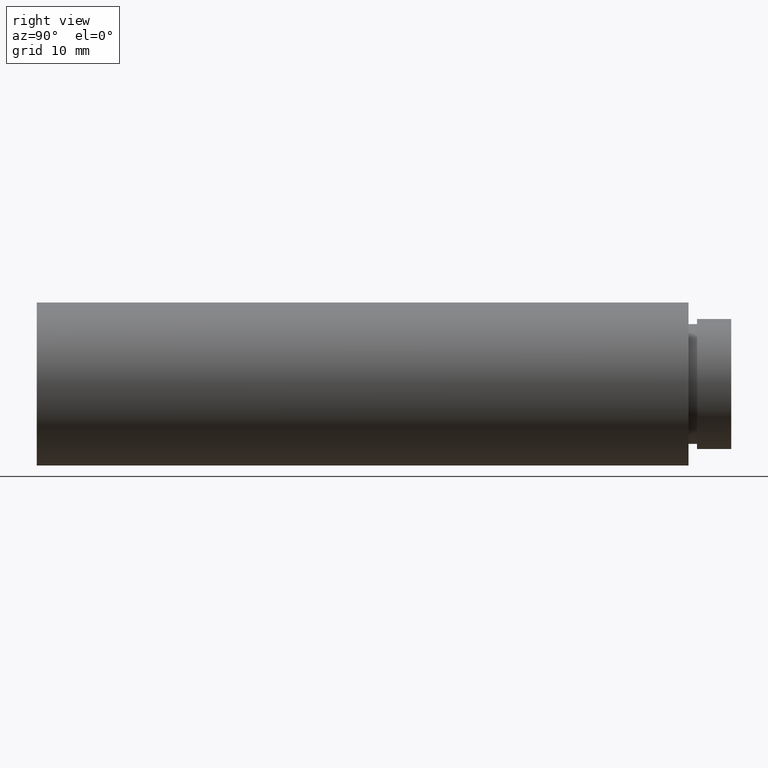
[diagram: clean part render]
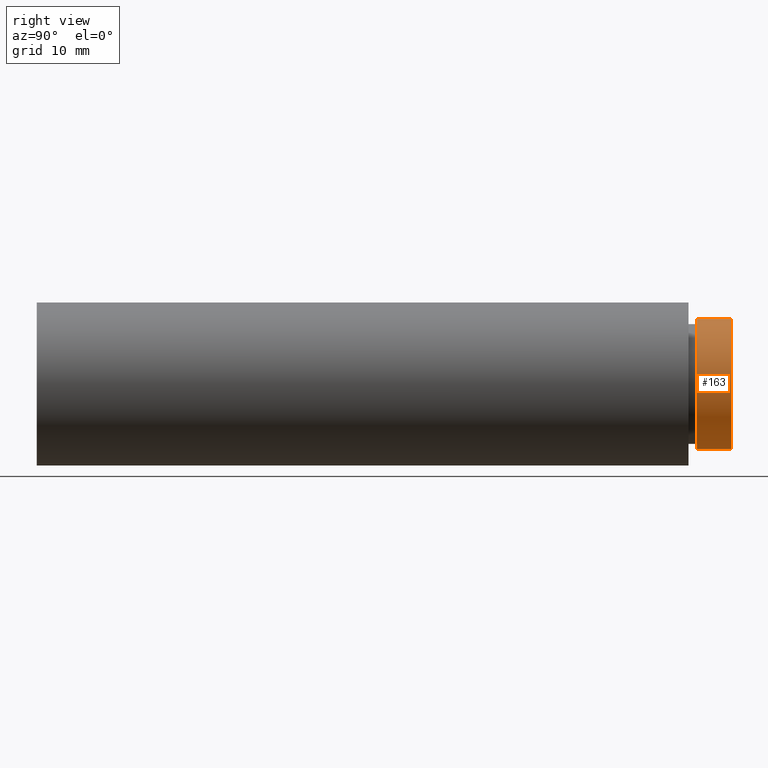
[diagram: same view with one face highlighted and labeled with its STEP entity id]
A machine part, right view. The second image highlights one B-rep face of the part: STEP entity #163.
In plain terms, the highlighted cylindrical surface (partial cylindrical patch) has radius 7.6 mm, axis along (-0, 1, -0).
Its self-contained STEP definition (entity closure, byte-faithful):
#7 = ORIENTED_EDGE ( 'NONE', *, *, #216, .T. ) ;
#39 = VECTOR ( 'NONE', #252, 1000.000000000000000 ) ;
#57 = CYLINDRICAL_SURFACE ( 'NONE', #550, 7.600000000000011200 ) ;
#98 = CARTESIAN_POINT ( 'NONE',  ( 9.307315673519897300E-016, 161.3761669434274500, -7.600000000000011200 ) ) ;
#124 = EDGE_CURVE ( 'NONE', #392, #356, #441, .T. ) ;
#161 = AXIS2_PLACEMENT_3D ( 'NONE', #560, #600, #423 ) ;
#163 = ADVANCED_FACE ( 'NONE', ( #508 ), #57, .T. ) ;
#177 = LINE ( 'NONE', #340, #39 ) ;
#216 = EDGE_CURVE ( 'NONE', #308, #437, #359, .T. ) ;
#220 = ORIENTED_EDGE ( 'NONE', *, *, #124, .F. ) ;
#228 = LINE ( 'NONE', #98, #376 ) ;
#231 = CARTESIAN_POINT ( 'NONE',  ( 0.0000000000000000000, 77.19999999999998900, 0.0000000000000000000 ) ) ;
#252 = DIRECTION ( 'NONE',  ( -0.0000000000000000000, 1.000000000000000000, -0.0000000000000000000 ) ) ;
#255 = CARTESIAN_POINT ( 'NONE',  ( 9.307315673519895300E-016, 77.19999999999998900, -7.600000000000010300 ) ) ;
#308 = VERTEX_POINT ( 'NONE', #374 ) ;
#309 = ORIENTED_EDGE ( 'NONE', *, *, #614, .F. ) ;
#326 = CARTESIAN_POINT ( 'NONE',  ( 9.307315673519897300E-016, 81.19999999999998900, -7.600000000000011200 ) ) ;
#340 = CARTESIAN_POINT ( 'NONE',  ( 0.0000000000000000000, 161.3761669434274500, 7.600000000000011200 ) ) ;
#356 = VERTEX_POINT ( 'NONE', #326 ) ;
#359 = CIRCLE ( 'NONE', #594, 7.600000000000010300 ) ;
#374 = CARTESIAN_POINT ( 'NONE',  ( 0.0000000000000000000, 77.19999999999998900, 7.600000000000010300 ) ) ;
#376 = VECTOR ( 'NONE', #621, 1000.000000000000000 ) ;
#379 = EDGE_CURVE ( 'NONE', #437, #356, #228, .T. ) ;
#392 = VERTEX_POINT ( 'NONE', #583 ) ;
#417 = ORIENTED_EDGE ( 'NONE', *, *, #379, .T. ) ;
#418 = DIRECTION ( 'NONE',  ( -0.0000000000000000000, 1.000000000000000000, -0.0000000000000000000 ) ) ;
#423 = DIRECTION ( 'NONE',  ( 0.0000000000000000000, 0.0000000000000000000, 1.000000000000000000 ) ) ;
#437 = VERTEX_POINT ( 'NONE', #255 ) ;
#441 = CIRCLE ( 'NONE', #161, 7.600000000000011200 ) ;
#508 = FACE_OUTER_BOUND ( 'NONE', #539, .T. ) ;
#520 = DIRECTION ( 'NONE',  ( 0.0000000000000000000, 0.0000000000000000000, 1.000000000000000000 ) ) ;
#523 = CARTESIAN_POINT ( 'NONE',  ( 0.0000000000000000000, 161.3761669434274500, 0.0000000000000000000 ) ) ;
#539 = EDGE_LOOP ( 'NONE', ( #7, #417, #220, #309 ) ) ;
#550 = AXIS2_PLACEMENT_3D ( 'NONE', #523, #418, #520 ) ;
#560 = CARTESIAN_POINT ( 'NONE',  ( 0.0000000000000000000, 81.19999999999998900, 0.0000000000000000000 ) ) ;
#564 = DIRECTION ( 'NONE',  ( -0.0000000000000000000, 1.000000000000000000, -0.0000000000000000000 ) ) ;
#583 = CARTESIAN_POINT ( 'NONE',  ( 0.0000000000000000000, 81.19999999999998900, 7.600000000000011200 ) ) ;
#594 = AXIS2_PLACEMENT_3D ( 'NONE', #231, #564, #606 ) ;
#600 = DIRECTION ( 'NONE',  ( -0.0000000000000000000, 1.000000000000000000, -0.0000000000000000000 ) ) ;
#606 = DIRECTION ( 'NONE',  ( 0.0000000000000000000, 0.0000000000000000000, 1.000000000000000000 ) ) ;
#614 = EDGE_CURVE ( 'NONE', #308, #392, #177, .T. ) ;
#621 = DIRECTION ( 'NONE',  ( -0.0000000000000000000, 1.000000000000000000, -0.0000000000000000000 ) ) ;